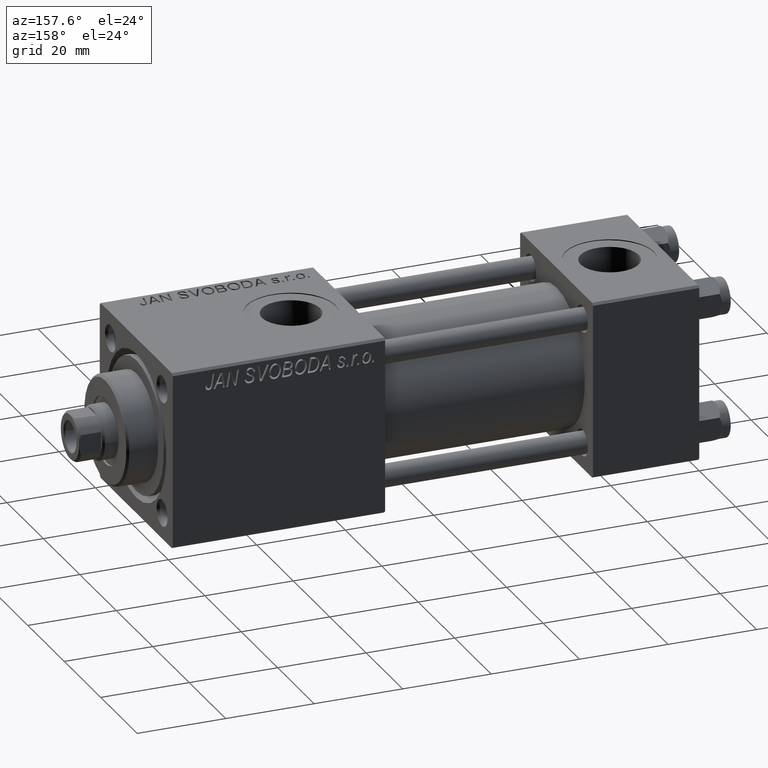
[diagram: clean part render]
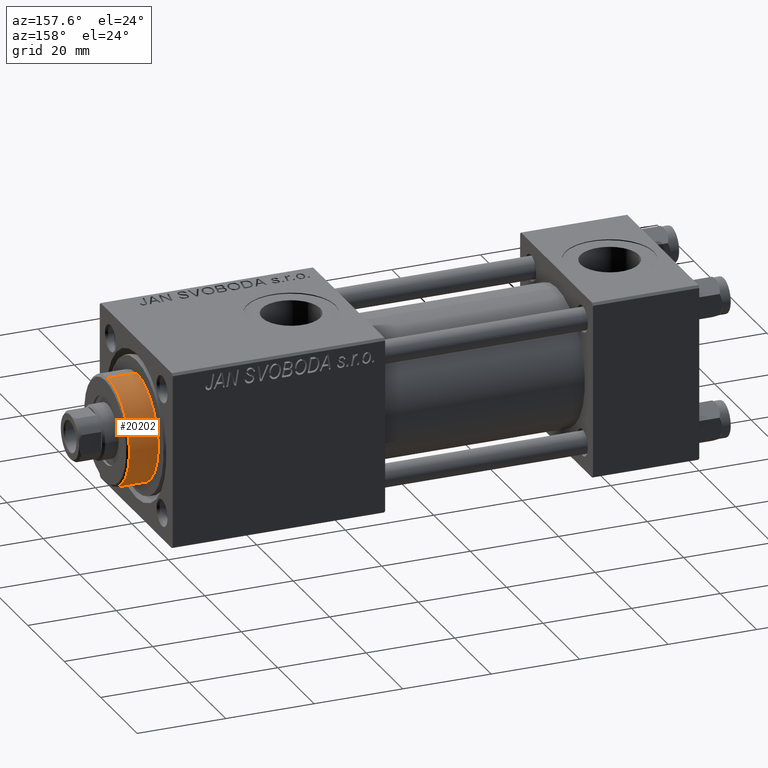
[diagram: same view with one face highlighted and labeled with its STEP entity id]
A machine part, auxiliary view. The second image highlights one B-rep face of the part: STEP entity #20202.
In plain terms, the highlighted cylindrical surface (partial cylindrical patch) has radius 12 mm, axis along (-1, -0, -0).
Its self-contained STEP definition (entity closure, byte-faithful):
#188 = VECTOR ( 'NONE', #2213, 1000.000000000000000 ) ;
#712 = ORIENTED_EDGE ( 'NONE', *, *, #49936, .T. ) ;
#1806 = CIRCLE ( 'NONE', #33396, 12.00000000000000178 ) ;
#2213 = DIRECTION ( 'NONE',  ( -0.000000000000000000, -0.000000000000000000, -1.000000000000000000 ) ) ;
#3997 = DIRECTION ( 'NONE',  ( -0.000000000000000000, -0.000000000000000000, -1.000000000000000000 ) ) ;
#7008 = DIRECTION ( 'NONE',  ( 1.000000000000000000, 0.000000000000000000, 0.000000000000000000 ) ) ;
#7279 = CARTESIAN_POINT ( 'NONE',  ( 12.00000000000000178, 1.469576158976824144E-15, 28.69999999999999929 ) ) ;
#9483 = ORIENTED_EDGE ( 'NONE', *, *, #9935, .T. ) ;
#9780 = EDGE_CURVE ( 'NONE', #11864, #27281, #36939, .T. ) ;
#9935 = EDGE_CURVE ( 'NONE', #23677, #27281, #1806, .T. ) ;
#10539 = ORIENTED_EDGE ( 'NONE', *, *, #20831, .T. ) ;
#11482 = DIRECTION ( 'NONE',  ( -0.000000000000000000, -0.000000000000000000, -1.000000000000000000 ) ) ;
#11569 = CARTESIAN_POINT ( 'NONE',  ( 0.000000000000000000, 0.000000000000000000, 28.69999999999999929 ) ) ;
#11775 = AXIS2_PLACEMENT_3D ( 'NONE', #34551, #11482, #38867 ) ;
#11805 = AXIS2_PLACEMENT_3D ( 'NONE', #26749, #15869, #42218 ) ;
#11864 = VERTEX_POINT ( 'NONE', #36760 ) ;
#15869 = DIRECTION ( 'NONE',  ( 0.000000000000000000, 0.000000000000000000, -1.000000000000000000 ) ) ;
#16651 = EDGE_LOOP ( 'NONE', ( #10539, #712, #9483, #26086 ) ) ;
#19087 = FACE_OUTER_BOUND ( 'NONE', #16651, .T. ) ;
#20202 = ADVANCED_FACE ( 'NONE', ( #19087 ), #34298, .T. ) ;
#20831 = EDGE_CURVE ( 'NONE', #11864, #44311, #31247, .T. ) ;
#23677 = VERTEX_POINT ( 'NONE', #7279 ) ;
#26086 = ORIENTED_EDGE ( 'NONE', *, *, #9780, .F. ) ;
#26749 = CARTESIAN_POINT ( 'NONE',  ( 0.000000000000000000, 0.000000000000000000, 35.19999999999999574 ) ) ;
#27281 = VERTEX_POINT ( 'NONE', #41162 ) ;
#31247 = CIRCLE ( 'NONE', #11805, 12.00000000000000178 ) ;
#33396 = AXIS2_PLACEMENT_3D ( 'NONE', #11569, #38696, #7008 ) ;
#34298 = CYLINDRICAL_SURFACE ( 'NONE', #11775, 12.00000000000000178 ) ;
#34551 = CARTESIAN_POINT ( 'NONE',  ( 0.000000000000000000, 0.000000000000000000, 35.70000000000000284 ) ) ;
#36760 = CARTESIAN_POINT ( 'NONE',  ( -12.00000000000000178, 0.000000000000000000, 35.19999999999999574 ) ) ;
#36939 = LINE ( 'NONE', #40983, #188 ) ;
#38696 = DIRECTION ( 'NONE',  ( 0.000000000000000000, 0.000000000000000000, 1.000000000000000000 ) ) ;
#38725 = LINE ( 'NONE', #50126, #46600 ) ;
#38867 = DIRECTION ( 'NONE',  ( -1.000000000000000000, 0.000000000000000000, 0.000000000000000000 ) ) ;
#40352 = CARTESIAN_POINT ( 'NONE',  ( 12.00000000000000178, 1.469576158976824144E-15, 35.19999999999999574 ) ) ;
#40983 = CARTESIAN_POINT ( 'NONE',  ( -12.00000000000000178, 0.000000000000000000, 35.70000000000000284 ) ) ;
#41162 = CARTESIAN_POINT ( 'NONE',  ( -12.00000000000000178, 0.000000000000000000, 28.69999999999999929 ) ) ;
#42218 = DIRECTION ( 'NONE',  ( 1.000000000000000000, 0.000000000000000000, 0.000000000000000000 ) ) ;
#44311 = VERTEX_POINT ( 'NONE', #40352 ) ;
#46600 = VECTOR ( 'NONE', #3997, 1000.000000000000000 ) ;
#49936 = EDGE_CURVE ( 'NONE', #44311, #23677, #38725, .T. ) ;
#50126 = CARTESIAN_POINT ( 'NONE',  ( 12.00000000000000178, 1.469576158976824144E-15, 35.70000000000000284 ) ) ;